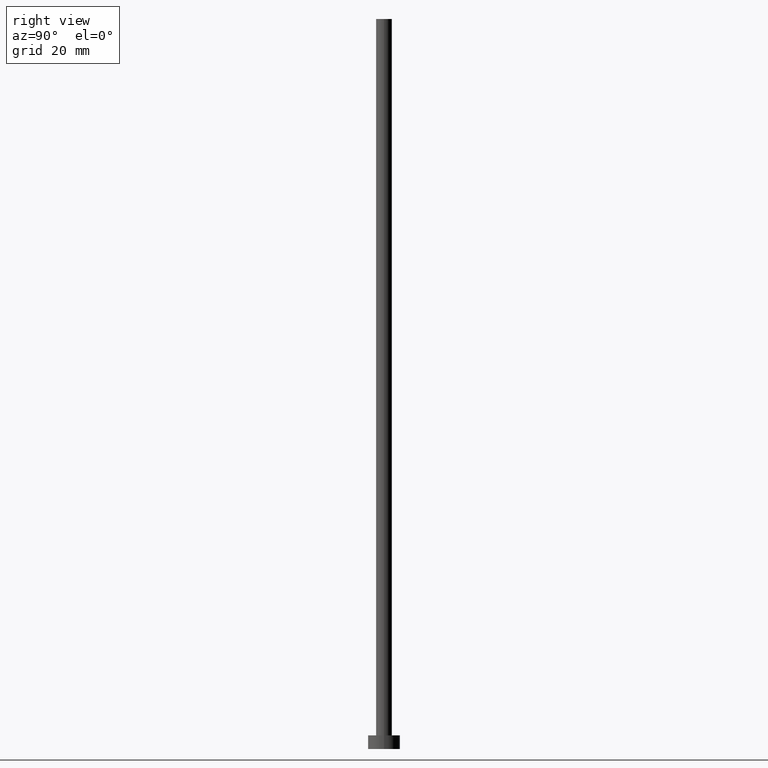
[diagram: clean part render]
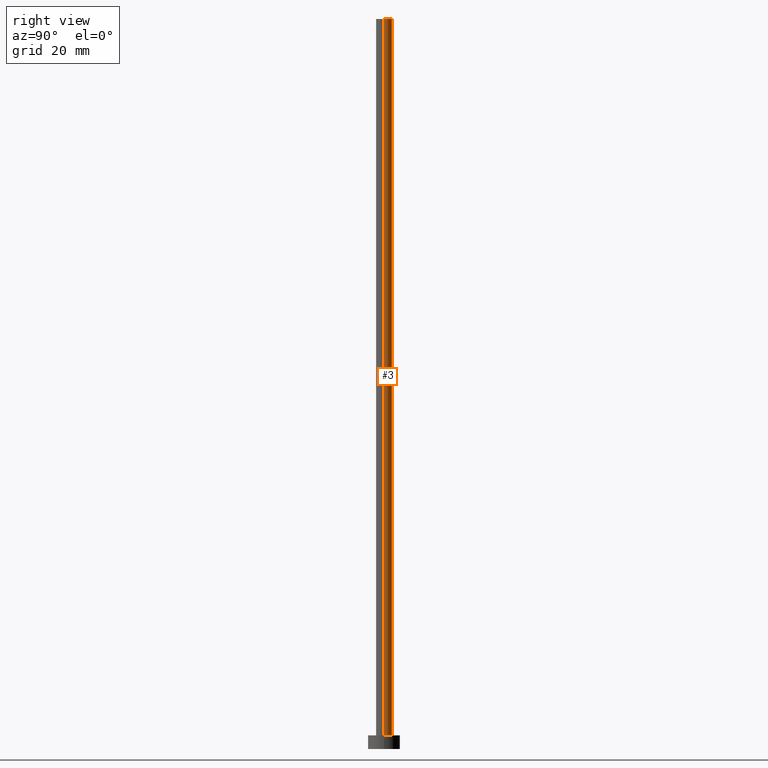
[diagram: same view with one face highlighted and labeled with its STEP entity id]
A machine part, right view. The second image highlights one B-rep face of the part: STEP entity #3.
In plain terms, the highlighted cylindrical surface (edge-blend (fillet) strip) has radius 1.75 mm, axis along (-0, -0, -1).
Its self-contained STEP definition (entity closure, byte-faithful):
#3 = ADVANCED_FACE ( 'NONE', ( #18 ), #232, .T. ) ;
#4 = DIRECTION ( 'NONE',  ( 1.000000000000000000, 0.000000000000000000, 0.000000000000000000 ) ) ;
#9 = EDGE_CURVE ( 'NONE', #39, #59, #228, .T. ) ;
#10 = ORIENTED_EDGE ( 'NONE', *, *, #132, .F. ) ;
#17 = CIRCLE ( 'NONE', #60, 1.750000000000000000 ) ;
#18 = FACE_OUTER_BOUND ( 'NONE', #154, .T. ) ;
#19 = DIRECTION ( 'NONE',  ( 0.000000000000000000, 0.000000000000000000, 1.000000000000000000 ) ) ;
#25 = DIRECTION ( 'NONE',  ( 0.000000000000000000, 0.000000000000000000, 1.000000000000000000 ) ) ;
#38 = ORIENTED_EDGE ( 'NONE', *, *, #139, .F. ) ;
#39 = VERTEX_POINT ( 'NONE', #157 ) ;
#46 = CARTESIAN_POINT ( 'NONE',  ( 0.000000000000000000, 0.000000000000000000, 160.0000000000000000 ) ) ;
#59 = VERTEX_POINT ( 'NONE', #131 ) ;
#60 = AXIS2_PLACEMENT_3D ( 'NONE', #198, #19, #4 ) ;
#69 = DIRECTION ( 'NONE',  ( 1.000000000000000000, 0.000000000000000000, 0.000000000000000000 ) ) ;
#83 = CARTESIAN_POINT ( 'NONE',  ( -1.750000000000000000, 0.000000000000000000, 160.0000000000000000 ) ) ;
#101 = CARTESIAN_POINT ( 'NONE',  ( 1.750000000000000000, 2.143131898507868297E-16, 160.0000000000000000 ) ) ;
#129 = EDGE_CURVE ( 'NONE', #59, #247, #17, .T. ) ;
#131 = CARTESIAN_POINT ( 'NONE',  ( 1.750000000000000000, 2.143131898507868297E-16, 3.000000000000000000 ) ) ;
#132 = EDGE_CURVE ( 'NONE', #194, #247, #255, .T. ) ;
#138 = DIRECTION ( 'NONE',  ( -0.000000000000000000, -0.000000000000000000, -1.000000000000000000 ) ) ;
#139 = EDGE_CURVE ( 'NONE', #39, #194, #234, .T. ) ;
#142 = CARTESIAN_POINT ( 'NONE',  ( -1.750000000000000000, 0.000000000000000000, 3.000000000000000000 ) ) ;
#152 = AXIS2_PLACEMENT_3D ( 'NONE', #213, #178, #155 ) ;
#154 = EDGE_LOOP ( 'NONE', ( #38, #208, #231, #10 ) ) ;
#155 = DIRECTION ( 'NONE',  ( -1.000000000000000000, 0.000000000000000000, 0.000000000000000000 ) ) ;
#157 = CARTESIAN_POINT ( 'NONE',  ( 1.750000000000000000, 2.143131898507868297E-16, 160.0000000000000000 ) ) ;
#161 = VECTOR ( 'NONE', #138, 1000.000000000000000 ) ;
#178 = DIRECTION ( 'NONE',  ( -0.000000000000000000, -0.000000000000000000, -1.000000000000000000 ) ) ;
#185 = CARTESIAN_POINT ( 'NONE',  ( -1.750000000000000000, 0.000000000000000000, 160.0000000000000000 ) ) ;
#190 = VECTOR ( 'NONE', #215, 1000.000000000000000 ) ;
#194 = VERTEX_POINT ( 'NONE', #185 ) ;
#198 = CARTESIAN_POINT ( 'NONE',  ( 0.000000000000000000, 0.000000000000000000, 3.000000000000000000 ) ) ;
#208 = ORIENTED_EDGE ( 'NONE', *, *, #9, .T. ) ;
#213 = CARTESIAN_POINT ( 'NONE',  ( 0.000000000000000000, 0.000000000000000000, 160.0000000000000000 ) ) ;
#215 = DIRECTION ( 'NONE',  ( -0.000000000000000000, -0.000000000000000000, -1.000000000000000000 ) ) ;
#228 = LINE ( 'NONE', #101, #161 ) ;
#231 = ORIENTED_EDGE ( 'NONE', *, *, #129, .T. ) ;
#232 = CYLINDRICAL_SURFACE ( 'NONE', #152, 1.750000000000000000 ) ;
#234 = CIRCLE ( 'NONE', #245, 1.750000000000000000 ) ;
#245 = AXIS2_PLACEMENT_3D ( 'NONE', #46, #25, #69 ) ;
#247 = VERTEX_POINT ( 'NONE', #142 ) ;
#255 = LINE ( 'NONE', #83, #190 ) ;